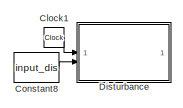
[diagram: root canvas - part 1/3, top right region]
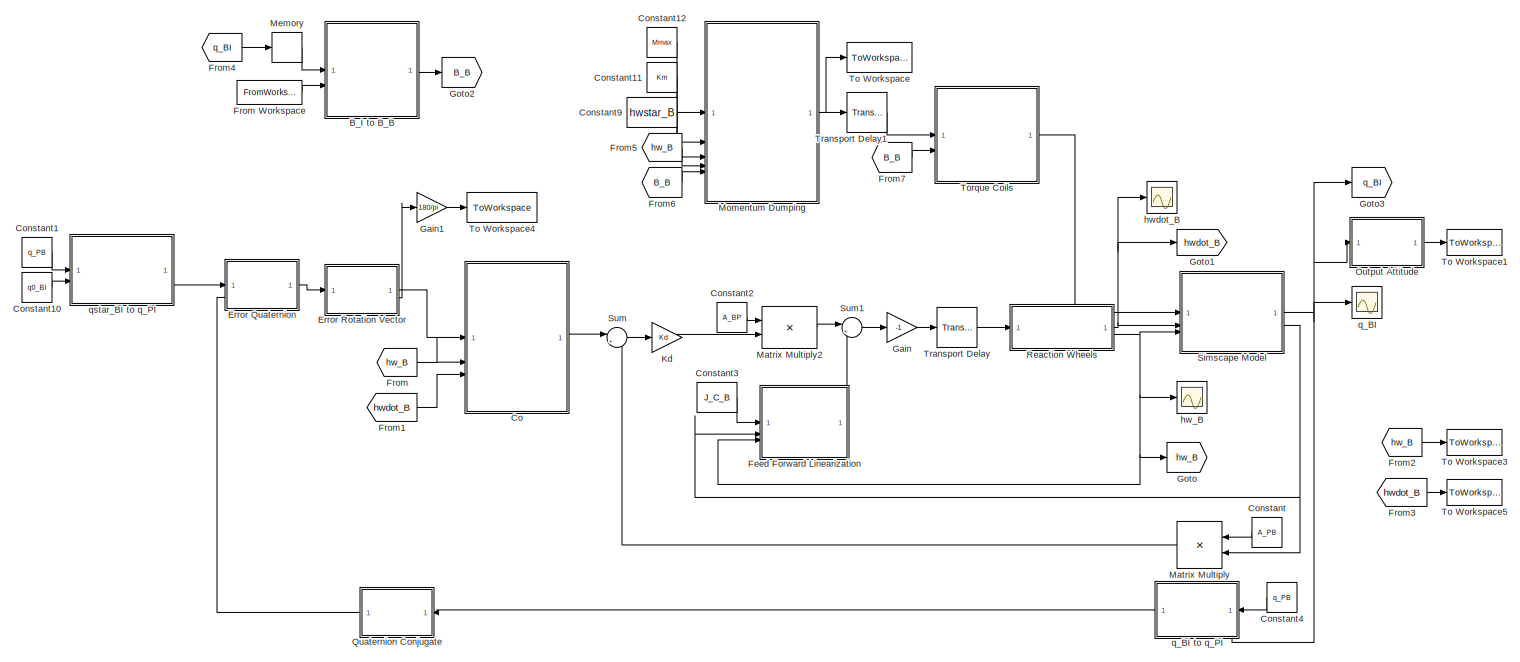
[diagram: root canvas - part 2/3, center side, full height]
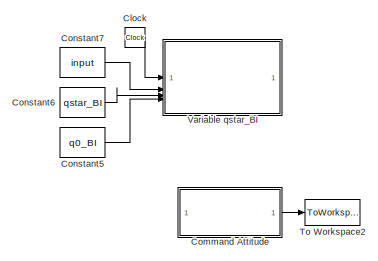
[diagram: root canvas - part 3/3, middle left region]
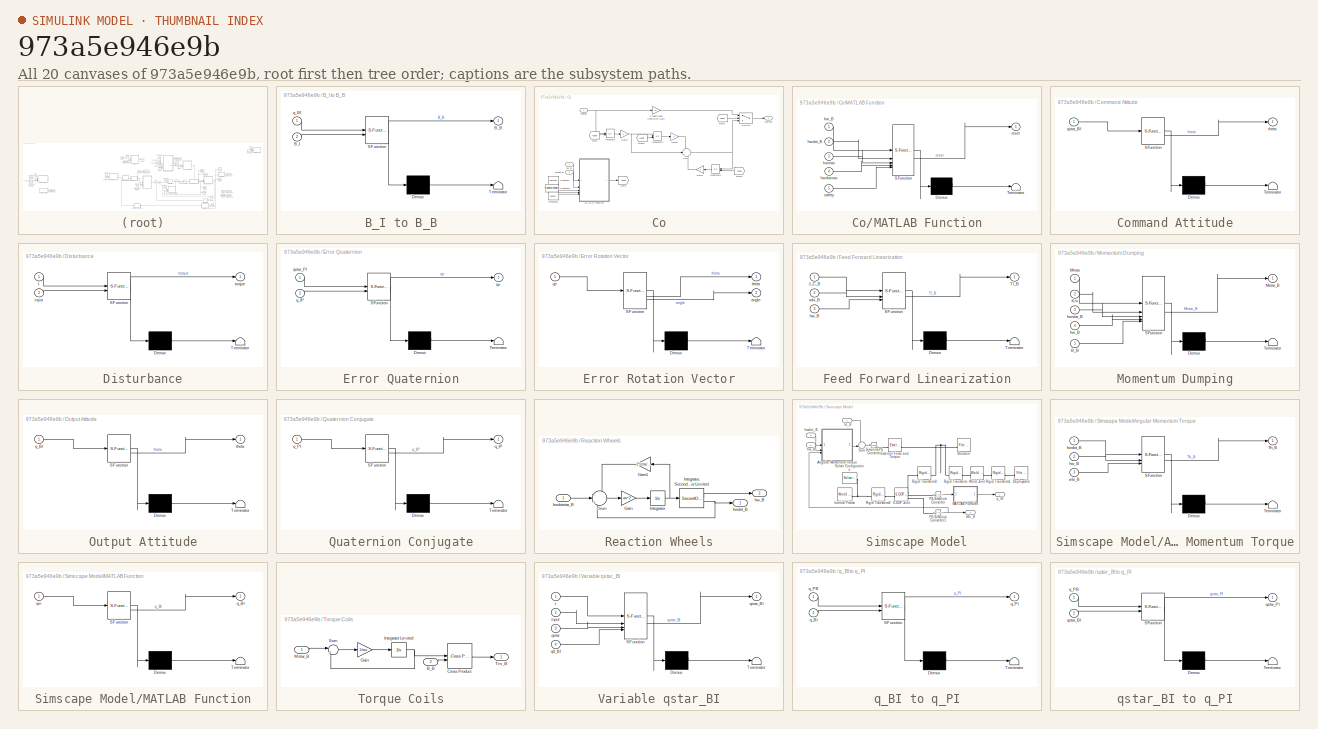
[diagram: thumbnail index - all 20 canvases of the model, root first then tree order]
MODEL slx_973a5e946e9b
KIND model
CONFIG AbsTol = auto
CONFIG EnableMultiTasking = off
CONFIG FixedStep = 0.
CONFIG MaxStep = auto
CONFIG MinStep = auto
CONFIG RelTol = 2.8421709430404007E-14
CONFIG SampleTimeConstraint = Unconstrained
CONFIG SolverName = VariableStepAuto
CONFIG StartTime = 0.0
CONFIG StopTime = 30
WORKSPACE source: mxarray member
WORKSPACE x0 = 0
BLOCK [SubSystem] B_I to B_B
  ErrorFcn = Stateflow.Translate.translate
  PermitHierarchicalResolution = ExplicitOnly
  SFBlockType = MATLAB Function
  TreatAsAtomicUnit = on
BLOCK [Demux] B_I to B_B/ Demux 
  Outputs = 1
BLOCK [S-Function] B_I to B_B/ SFunction 
  EnableBusSupport = on
  FunctionName = sf_sfun
  PortCounts = [2 2]
  SFcnIsStateOwnerBlock = off
  SFunctionDeploymentMode = off
  Tag = Stateflow S-Function 14
BLOCK [Terminator] B_I to B_B/ Terminator 
BLOCK [Outport] B_I to B_B/B_B
BLOCK [Inport] B_I to B_B/B_I
  Port = 2
BLOCK [Inport] B_I to B_B/q_BI
BLOCK [Clock] Clock
  Commented = on
BLOCK [Clock] Clock1
  Commented = on
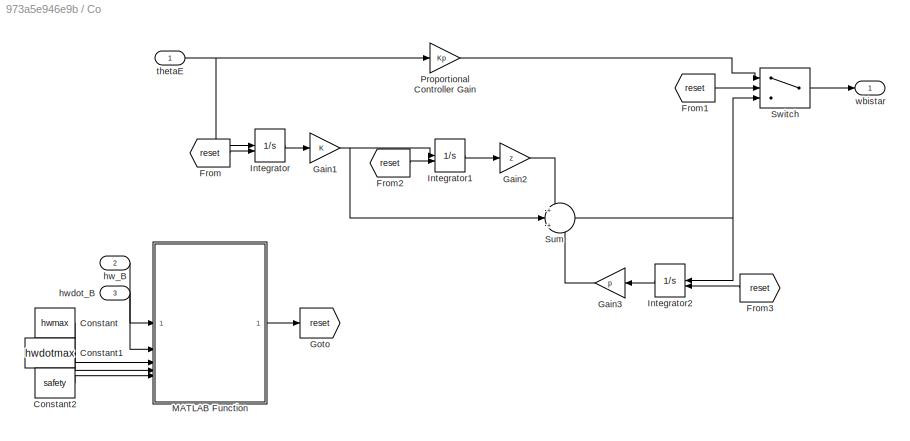
BLOCK [SubSystem] Co
BLOCK [Constant] Co/Constant
  Value = hwmax
BLOCK [Constant] Co/Constant1
  Value = hwdotmax
BLOCK [Constant] Co/Constant2
  Value = safety
BLOCK [From] Co/From
  GotoTag = reset
BLOCK [From] Co/From1
  GotoTag = reset
BLOCK [From] Co/From2
  GotoTag = reset
BLOCK [From] Co/From3
  GotoTag = reset
BLOCK [Gain] Co/Gain1
  Gain = K
BLOCK [Gain] Co/Gain2
  Gain = z
BLOCK [Gain] Co/Gain3
  Gain = p
BLOCK [Goto] Co/Goto
  GotoTag = reset
BLOCK [Integrator] Co/Integrator
  ExternalReset = level
BLOCK [Integrator] Co/Integrator1
  ExternalReset = level
BLOCK [Integrator] Co/Integrator2
  ExternalReset = level
BLOCK [SubSystem] Co/MATLAB Function
  ErrorFcn = Stateflow.Translate.translate
  PermitHierarchicalResolution = ExplicitOnly
  SFBlockType = MATLAB Function
  TreatAsAtomicUnit = on
BLOCK [Demux] Co/MATLAB Function/ Demux 
  Outputs = 1
BLOCK [S-Function] Co/MATLAB Function/ SFunction 
  EnableBusSupport = on
  FunctionName = sf_sfun
  PortCounts = [5 2]
  SFcnIsStateOwnerBlock = off
  SFunctionDeploymentMode = off
  Tag = Stateflow S-Function 13
BLOCK [Terminator] Co/MATLAB Function/ Terminator 
BLOCK [Inport] Co/MATLAB Function/hw_B
BLOCK [Inport] Co/MATLAB Function/hwdot_B
  Port = 2
BLOCK [Inport] Co/MATLAB Function/hwdotmax
  Port = 4
BLOCK [Inport] Co/MATLAB Function/hwmax
  Port = 3
BLOCK [Outport] Co/MATLAB Function/reset
BLOCK [Inport] Co/MATLAB Function/safety
  Port = 5
BLOCK [Gain] Co/Proportional Controller Gain
  Gain = Kp
BLOCK [Sum] Co/Sum
  Inputs = +|+|-
BLOCK [Switch] Co/Switch
  Criteria = u2 > Threshold
  InputSameDT = off
  SaturateOnIntegerOverflow = off
BLOCK [Inport] Co/hw_B
  Port = 2
BLOCK [Inport] Co/hwdot_B
  Port = 3
BLOCK [Inport] Co/thetaE
BLOCK [Outport] Co/wbistar
BLOCK [SubSystem] Command Attitude
  Commented = on
  ErrorFcn = Stateflow.Translate.translate
  PermitHierarchicalResolution = ExplicitOnly
  SFBlockType = MATLAB Function
  TreatAsAtomicUnit = on
BLOCK [Demux] Command Attitude/ Demux 
  Outputs = 1
BLOCK [S-Function] Command Attitude/ SFunction 
  EnableBusSupport = on
  FunctionName = sf_sfun
  PortCounts = [1 2]
  SFcnIsStateOwnerBlock = off
  SFunctionDeploymentMode = off
  Tag = Stateflow S-Function 10
BLOCK [Terminator] Command Attitude/ Terminator 
BLOCK [Inport] Command Attitude/qstar_BI
BLOCK [Outport] Command Attitude/theta
BLOCK [Constant] Constant
  Value = A_PB
BLOCK [Constant] Constant1
  OutDataTypeStr = Bus: qBus
  Value = q_PB
BLOCK [Constant] Constant10
  OutDataTypeStr = Bus: qBus
  Value = q0_BI
BLOCK [Constant] Constant11
  Value = Km
BLOCK [Constant] Constant12
  Value = Mmax
BLOCK [Constant] Constant2
  Value = A_BP
BLOCK [Constant] Constant3
  Value = J_C_B
BLOCK [Constant] Constant4
  OutDataTypeStr = Bus: qBus
  Value = q_PB
BLOCK [Constant] Constant5
  Commented = on
  OutDataTypeStr = Bus: qBus
  Value = q0_BI
BLOCK [Constant] Constant6
  Commented = on
  OutDataTypeStr = Bus: qBus
  Value = qstar_BI
BLOCK [Constant] Constant7
  Commented = on
  Value = input
BLOCK [Constant] Constant8
  Commented = on
  Value = input_dis
BLOCK [Constant] Constant9
  Value = hwstar_B
BLOCK [SubSystem] Disturbance
  Commented = on
  ErrorFcn = Stateflow.Translate.translate
  PermitHierarchicalResolution = ExplicitOnly
  SFBlockType = MATLAB Function
  TreatAsAtomicUnit = on
BLOCK [Demux] Disturbance/ Demux 
  Outputs = 1
BLOCK [S-Function] Disturbance/ SFunction 
  EnableBusSupport = on
  FunctionName = sf_sfun
  PortCounts = [2 2]
  SFcnIsStateOwnerBlock = off
  SFunctionDeploymentMode = off
  Tag = Stateflow S-Function 11
BLOCK [Terminator] Disturbance/ Terminator 
BLOCK [Inport] Disturbance/input
  Port = 2
BLOCK [Inport] Disturbance/t
BLOCK [Outport] Disturbance/torque
BLOCK [SubSystem] Error Quaternion
  ErrorFcn = Stateflow.Translate.translate
  PermitHierarchicalResolution = ExplicitOnly
  SFBlockType = MATLAB Function
  TreatAsAtomicUnit = on
BLOCK [Demux] Error Quaternion/ Demux 
  Outputs = 1
BLOCK [S-Function] Error Quaternion/ SFunction 
  EnableBusSupport = on
  FunctionName = sf_sfun
  PortCounts = [2 2]
  SFcnIsStateOwnerBlock = off
  SFunctionDeploymentMode = off
  Tag = Stateflow S-Function 5
BLOCK [Terminator] Error Quaternion/ Terminator 
BLOCK [Inport] Error Quaternion/q_IP
  Port = 2
BLOCK [Outport] Error Quaternion/qe
BLOCK [Inport] Error Quaternion/qstar_PI
BLOCK [SubSystem] Error Rotation Vector
  ErrorFcn = Stateflow.Translate.translate
  PermitHierarchicalResolution = ExplicitOnly
  SFBlockType = MATLAB Function
  TreatAsAtomicUnit = on
BLOCK [Demux] Error Rotation Vector/ Demux 
  Outputs = 1
BLOCK [S-Function] Error Rotation Vector/ SFunction 
  EnableBusSupport = on
  FunctionName = sf_sfun
  PortCounts = [1 3]
  SFcnIsStateOwnerBlock = off
  SFunctionDeploymentMode = off
  Tag = Stateflow S-Function 6
BLOCK [Terminator] Error Rotation Vector/ Terminator 
BLOCK [Outport] Error Rotation Vector/angle
  Port = 2
BLOCK [Inport] Error Rotation Vector/qe
BLOCK [Outport] Error Rotation Vector/theta
BLOCK [SubSystem] Feed Forward Linearization
  ErrorFcn = Stateflow.Translate.translate
  PermitHierarchicalResolution = ExplicitOnly
  SFBlockType = MATLAB Function
  TreatAsAtomicUnit = on
BLOCK [Demux] Feed Forward Linearization/ Demux 
  Outputs = 1
BLOCK [S-Function] Feed Forward Linearization/ SFunction 
  EnableBusSupport = on
  FunctionName = sf_sfun
  PortCounts = [3 2]
  SFcnIsStateOwnerBlock = off
  SFunctionDeploymentMode = off
  Tag = Stateflow S-Function 2
BLOCK [Terminator] Feed Forward Linearization/ Terminator 
BLOCK [Inport] Feed Forward Linearization/J_C_B
BLOCK [Outport] Feed Forward Linearization/Tl_B
BLOCK [Inport] Feed Forward Linearization/hw_B
  Port = 3
BLOCK [Inport] Feed Forward Linearization/wbi_B
  Port = 2
BLOCK [From] From
  GotoTag = hw_B
BLOCK [FromWorkspace] From Workspace
  VariableName = B_I
BLOCK [From] From1
  GotoTag = hwdot_B
BLOCK [From] From2
  GotoTag = hw_B
BLOCK [From] From3
  GotoTag = hwdot_B
BLOCK [From] From4
  GotoTag = q_BI
BLOCK [From] From5
  GotoTag = hw_B
BLOCK [From] From6
  GotoTag = B_B
BLOCK [From] From7
  GotoTag = B_B
BLOCK [Gain] Gain
  Gain = -1
BLOCK [Gain] Gain1
  Gain = 180/pi
BLOCK [Goto] Goto
  GotoTag = hw_B
BLOCK [Goto] Goto1
  GotoTag = hwdot_B
BLOCK [Goto] Goto2
  GotoTag = B_B
BLOCK [Goto] Goto3
  GotoTag = q_BI
BLOCK [Gain] Kd
  Gain = Kd
  Multiplication = Matrix(K*u) (u vector)
BLOCK [Product] Matrix Multiply
  Multiplication = Matrix(*)
BLOCK [Product] Matrix Multiply2
  Multiplication = Matrix(*)
BLOCK [Memory] Memory
  InitialCondition = q0_BI
BLOCK [SubSystem] Momentum Dumping
  ErrorFcn = Stateflow.Translate.translate
  PermitHierarchicalResolution = ExplicitOnly
  SFBlockType = MATLAB Function
  TreatAsAtomicUnit = on
BLOCK [Demux] Momentum Dumping/ Demux 
  Outputs = 1
BLOCK [S-Function] Momentum Dumping/ SFunction 
  EnableBusSupport = on
  FunctionName = sf_sfun
  PortCounts = [5 2]
  SFcnIsStateOwnerBlock = off
  SFunctionDeploymentMode = off
  Tag = Stateflow S-Function 15
BLOCK [Terminator] Momentum Dumping/ Terminator 
BLOCK [Inport] Momentum Dumping/B_B
  Port = 5
BLOCK [Inport] Momentum Dumping/Km
  Port = 2
BLOCK [Inport] Momentum Dumping/Mmax
BLOCK [Outport] Momentum Dumping/Mstar_B
BLOCK [Inport] Momentum Dumping/hw_B
  Port = 4
BLOCK [Inport] Momentum Dumping/hwstar_B
  Port = 3
BLOCK [SubSystem] Output Attitude
  ErrorFcn = Stateflow.Translate.translate
  PermitHierarchicalResolution = ExplicitOnly
  SFBlockType = MATLAB Function
  TreatAsAtomicUnit = on
BLOCK [Demux] Output Attitude/ Demux 
  Outputs = 1
BLOCK [S-Function] Output Attitude/ SFunction 
  EnableBusSupport = on
  FunctionName = sf_sfun
  PortCounts = [1 2]
  SFcnIsStateOwnerBlock = off
  SFunctionDeploymentMode = off
  Tag = Stateflow S-Function 9
BLOCK [Terminator] Output Attitude/ Terminator 
BLOCK [Inport] Output Attitude/q_BI
BLOCK [Outport] Output Attitude/theta
BLOCK [SubSystem] Quaternion Conjugate
  ErrorFcn = Stateflow.Translate.translate
  PermitHierarchicalResolution = ExplicitOnly
  SFBlockType = MATLAB Function
  TreatAsAtomicUnit = on
BLOCK [Demux] Quaternion Conjugate/ Demux 
  Outputs = 1
BLOCK [S-Function] Quaternion Conjugate/ SFunction 
  EnableBusSupport = on
  FunctionName = sf_sfun
  PortCounts = [1 2]
  SFcnIsStateOwnerBlock = off
  SFunctionDeploymentMode = off
  Tag = Stateflow S-Function 4
BLOCK [Terminator] Quaternion Conjugate/ Terminator 
BLOCK [Outport] Quaternion Conjugate/q_IP
BLOCK [Inport] Quaternion Conjugate/q_PI
BLOCK [SubSystem] Reaction Wheels
BLOCK [Gain] Reaction Wheels/Gain
  Gain = wn^2
BLOCK [Gain] Reaction Wheels/Gain1
  Gain = 2*zeta/wn
BLOCK [Integrator] Reaction Wheels/Integrator
BLOCK [SecondOrderIntegrator] Reaction Wheels/Integrator, Second-Order Limited
  ICX = hw0_B
  LimitDXDT = on
  LimitX = on
  LowerLimitDXDT = -hwdotmax
  LowerLimitX = -hwmax
  UpperLimitDXDT = hwdotmax
  UpperLimitX = hwmax
BLOCK [Sum] Reaction Wheels/Sum
  Inputs = -|+|-
BLOCK [Outport] Reaction Wheels/hw_B
  Port = 2
BLOCK [Outport] Reaction Wheels/hwdot_B
BLOCK [Inport] Reaction Wheels/hwdotstar_B
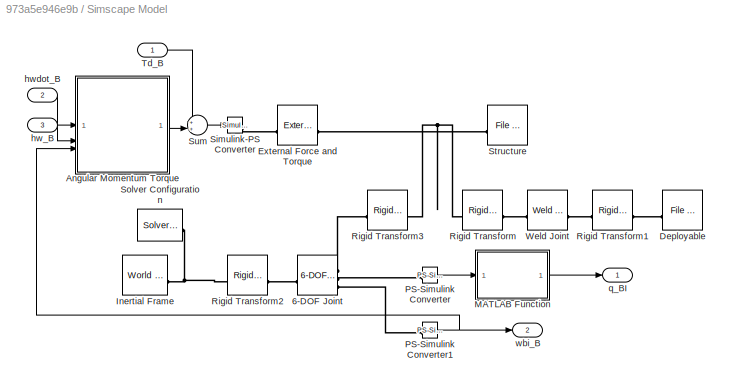
BLOCK [SubSystem] Simscape Model
  TreatAsAtomicUnit = on
BLOCK [Reference] Simscape Model/6-DOF Joint  REF=sm_lib/Joints/6-DOF Joint
  SourceBlock = sm_lib/Joints/6-DOF Joint
  SourceType = 6-DOF Joint
BLOCK [SubSystem] Simscape Model/Angular Momentum Torque
  ErrorFcn = Stateflow.Translate.translate
  PermitHierarchicalResolution = ExplicitOnly
  SFBlockType = MATLAB Function
  TreatAsAtomicUnit = on
BLOCK [Demux] Simscape Model/Angular Momentum Torque/ Demux 
  Outputs = 1
BLOCK [S-Function] Simscape Model/Angular Momentum Torque/ SFunction 
  EnableBusSupport = on
  FunctionName = sf_sfun
  PortCounts = [3 2]
  SFcnIsStateOwnerBlock = off
  SFunctionDeploymentMode = off
  Tag = Stateflow S-Function 12
BLOCK [Terminator] Simscape Model/Angular Momentum Torque/ Terminator 
BLOCK [Outport] Simscape Model/Angular Momentum Torque/Th_B
BLOCK [Inport] Simscape Model/Angular Momentum Torque/hw_B
  Port = 2
BLOCK [Inport] Simscape Model/Angular Momentum Torque/hwdot_B
BLOCK [Inport] Simscape Model/Angular Momentum Torque/wbi_B
  Port = 3
BLOCK [Reference] Simscape Model/Deployable  REF=sm_lib/Body Elements/File Solid
  SourceBlock = sm_lib/Body Elements/File Solid
  SourceType = File Solid
BLOCK [Reference] Simscape Model/External Force and Torque  REF=sm_lib/Forces and
Torques/External Force
and Torque
  SourceBlock = sm_lib/Forces and\nTorques/External Force\nand Torque
  SourceType = External Force\nand Torque
BLOCK [Reference] Simscape Model/Inertial Frame  REF=sm_lib/Frames and
Transforms/World Frame
  SourceBlock = sm_lib/Frames and\nTransforms/World Frame
  SourceType = World Frame
BLOCK [SubSystem] Simscape Model/MATLAB Function
  ErrorFcn = Stateflow.Translate.translate
  PermitHierarchicalResolution = ExplicitOnly
  SFBlockType = MATLAB Function
  TreatAsAtomicUnit = on
BLOCK [Demux] Simscape Model/MATLAB Function/ Demux 
  Outputs = 1
BLOCK [S-Function] Simscape Model/MATLAB Function/ SFunction 
  EnableBusSupport = on
  FunctionName = sf_sfun
  PortCounts = [1 2]
  SFcnIsStateOwnerBlock = off
  SFunctionDeploymentMode = off
  Tag = Stateflow S-Function 1
BLOCK [Terminator] Simscape Model/MATLAB Function/ Terminator 
BLOCK [Outport] Simscape Model/MATLAB Function/q_BI
BLOCK [Inport] Simscape Model/MATLAB Function/qin
BLOCK [Reference] Simscape Model/PS-Simulink Converter  REF=nesl_utility/PS-Simulink
Converter
  SourceBlock = nesl_utility/PS-Simulink\nConverter
  SourceType = PS-Simulink\nConverter
BLOCK [Reference] Simscape Model/PS-Simulink Converter1  REF=nesl_utility/PS-Simulink
Converter
  SourceBlock = nesl_utility/PS-Simulink\nConverter
  SourceType = PS-Simulink\nConverter
BLOCK [Reference] Simscape Model/Rigid Transform  REF=sm_lib/Frames and
Transforms/Rigid
Transform
  SourceBlock = sm_lib/Frames and\nTransforms/Rigid\nTransform
  SourceType = Rigid\nTransform
BLOCK [Reference] Simscape Model/Rigid Transform1  REF=sm_lib/Frames and
Transforms/Rigid
Transform
  SourceBlock = sm_lib/Frames and\nTransforms/Rigid\nTransform
  SourceType = Rigid\nTransform
BLOCK [Reference] Simscape Model/Rigid Transform2  REF=sm_lib/Frames and
Transforms/Rigid
Transform
  SourceBlock = sm_lib/Frames and\nTransforms/Rigid\nTransform
  SourceType = Rigid\nTransform
BLOCK [Reference] Simscape Model/Rigid Transform3  REF=sm_lib/Frames and
Transforms/Rigid
Transform
  SourceBlock = sm_lib/Frames and\nTransforms/Rigid\nTransform
  SourceType = Rigid\nTransform
BLOCK [Reference] Simscape Model/Simulink-PS Converter  REF=nesl_utility/Simulink-PS
Converter
  SourceBlock = nesl_utility/Simulink-PS\nConverter
  SourceType = Simulink-PS\nConverter
BLOCK [Reference] Simscape Model/Solver Configuration  REF=nesl_utility/Solver
Configuration
  SourceBlock = nesl_utility/Solver\nConfiguration
  SourceType = Solver\nConfiguration
BLOCK [Reference] Simscape Model/Structure  REF=sm_lib/Body Elements/File Solid
  SourceBlock = sm_lib/Body Elements/File Solid
  SourceType = File Solid
BLOCK [Sum] Simscape Model/Sum
  Inputs = ++|
BLOCK [Inport] Simscape Model/Td_B
BLOCK [Reference] Simscape Model/Weld Joint  REF=sm_lib/Joints/Weld Joint
  SourceBlock = sm_lib/Joints/Weld Joint
  SourceType = Weld Joint
BLOCK [Inport] Simscape Model/hw_B
  Port = 3
BLOCK [Inport] Simscape Model/hwdot_B
  Port = 2
BLOCK [Outport] Simscape Model/q_BI
  OutDataTypeStr = Bus: qBus
  VectorParamsAs1DForOutWhenUnconnected = off
BLOCK [Outport] Simscape Model/wbi_B
  Port = 2
  VectorParamsAs1DForOutWhenUnconnected = off
BLOCK [Sum] Sum
  Inputs = |+-
BLOCK [Sum] Sum1
  Inputs = |++
BLOCK [ToWorkspace] To Workspace
  FixptAsFi = on
  MaxDataPoints = inf
  SampleTime = -1
  SaveFormat = Timeseries
  VariableName = Mstar_B
BLOCK [ToWorkspace] To Workspace1
  FixptAsFi = on
  MaxDataPoints = inf
  SampleTime = -1
  SaveFormat = Timeseries
  VariableName = theta_out
BLOCK [ToWorkspace] To Workspace2
  Commented = on
  FixptAsFi = on
  MaxDataPoints = inf
  SampleTime = -1
  SaveFormat = Timeseries
  VariableName = theta_com
BLOCK [ToWorkspace] To Workspace3
  FixptAsFi = on
  MaxDataPoints = inf
  SampleTime = -1
  SaveFormat = Timeseries
  VariableName = hw_B
BLOCK [ToWorkspace] To Workspace4
  FixptAsFi = on
  MaxDataPoints = inf
  SampleTime = -1
  SaveFormat = Timeseries
  VariableName = error_angle
BLOCK [ToWorkspace] To Workspace5
  FixptAsFi = on
  MaxDataPoints = inf
  SampleTime = -1
  SaveFormat = Timeseries
  VariableName = hwdot_B
BLOCK [SubSystem] Torque Coils
BLOCK [Inport] Torque Coils/B_B
  Port = 2
BLOCK [Reference] Torque Coils/Cross Product  REF=matrix_library/Cross Product
  LibrarySourceBlock = simulink/Matrix\nOperations/Cross Product
  SourceBlock = matrix_library/Cross Product
  SourceType = CrossProduct
BLOCK [Gain] Torque Coils/Gain
  Gain = 1/tau
BLOCK [Integrator] Torque Coils/Integrator Limited
  LimitOutput = on
  LowerSaturationLimit = -Mmax
  UpperSaturationLimit = Mmax
  ZeroCross = off
BLOCK [Inport] Torque Coils/Mstar_B
BLOCK [Sum] Torque Coils/Sum
  Inputs = |+-
BLOCK [Outport] Torque Coils/Tm_B
BLOCK [TransportDelay] Transport Delay
  BufferSize = 2048
  DelayTime = dt_delay
BLOCK [TransportDelay] Transport Delay1
  BufferSize = 2048
  DelayTime = dt_delay
BLOCK [SubSystem] Variable qstar_BI
  Commented = on
  ErrorFcn = Stateflow.Translate.translate
  PermitHierarchicalResolution = ExplicitOnly
  SFBlockType = MATLAB Function
  TreatAsAtomicUnit = on
BLOCK [Demux] Variable qstar_BI/ Demux 
  Outputs = 1
BLOCK [S-Function] Variable qstar_BI/ SFunction 
  EnableBusSupport = on
  FunctionName = sf_sfun
  PortCounts = [4 2]
  SFcnIsStateOwnerBlock = off
  SFunctionDeploymentMode = off
  Tag = Stateflow S-Function 8
BLOCK [Terminator] Variable qstar_BI/ Terminator 
BLOCK [Inport] Variable qstar_BI/input
  Port = 2
BLOCK [Inport] Variable qstar_BI/q0_BI
  Port = 4
BLOCK [Inport] Variable qstar_BI/qstar
  Port = 3
BLOCK [Outport] Variable qstar_BI/qstar_BI
BLOCK [Inport] Variable qstar_BI/t
BLOCK [Scope] hw_B
  Floating = off
  NumInputPorts = 1
  ScopeSpecificationString = Simulink.scopes.TimeScopeBlockCfg('CurrentConfiguration', extmgr.ConfigurationSet(extmgr.Configuration('Core','General UI',true),extmgr.Configuration('Core','Source UI',true),extmgr.Configuration('Sources','WiredSimulink',true,'DataLoggingVariableName','ScopeData1'),extmgr.Configuration('Visuals','Time Domain',true,'SerializedDisplays',{struct('MinYLimReal','-0.00625','MaxYLimReal','0.00625','YLab...<+1449ch>
BLOCK [Scope] hwdot_B
  Floating = off
  NumInputPorts = 1
  ScopeSpecificationString = Simulink.scopes.TimeScopeBlockCfg('CurrentConfiguration', extmgr.ConfigurationSet(extmgr.Configuration('Core','General UI',true),extmgr.Configuration('Core','Source UI',true),extmgr.Configuration('Sources','WiredSimulink',true,'DataLoggingVariableName','ScopeData2'),extmgr.Configuration('Visuals','Time Domain',true,'SerializedDisplays',{struct('MinYLimReal','0.003988','MaxYLimReal','0.004009','YLa...<+1474ch>
BLOCK [Scope] q_BI
  Floating = off
  NumInputPorts = 1
  ScopeSpecificationString = Simulink.scopes.TimeScopeBlockCfg('CurrentConfiguration', extmgr.ConfigurationSet(extmgr.Configuration('Core','General UI',true),extmgr.Configuration('Core','Source UI',true),extmgr.Configuration('Sources','WiredSimulink',true,'DataLoggingVariableName','ScopeData1'),extmgr.Configuration('Visuals','Time Domain',true),extmgr.Configuration('Tools','Plot Navigation',true),extmgr.Configuration('Tools',...<+40ch>
BLOCK [SubSystem] q_BI to q_PI
  ErrorFcn = Stateflow.Translate.translate
  PermitHierarchicalResolution = ExplicitOnly
  SFBlockType = MATLAB Function
  TreatAsAtomicUnit = on
BLOCK [Demux] q_BI to q_PI/ Demux 
  Outputs = 1
BLOCK [S-Function] q_BI to q_PI/ SFunction 
  EnableBusSupport = on
  FunctionName = sf_sfun
  PortCounts = [2 2]
  SFcnIsStateOwnerBlock = off
  SFunctionDeploymentMode = off
  Tag = Stateflow S-Function 3
BLOCK [Terminator] q_BI to q_PI/ Terminator 
BLOCK [Inport] q_BI to q_PI/q_BI
  Port = 2
BLOCK [Inport] q_BI to q_PI/q_PB
BLOCK [Outport] q_BI to q_PI/q_PI
BLOCK [SubSystem] qstar_BI to q_PI
  ErrorFcn = Stateflow.Translate.translate
  PermitHierarchicalResolution = ExplicitOnly
  SFBlockType = MATLAB Function
  TreatAsAtomicUnit = on
BLOCK [Demux] qstar_BI to q_PI/ Demux 
  Outputs = 1
BLOCK [S-Function] qstar_BI to q_PI/ SFunction 
  EnableBusSupport = on
  FunctionName = sf_sfun
  PortCounts = [2 2]
  SFcnIsStateOwnerBlock = off
  SFunctionDeploymentMode = off
  Tag = Stateflow S-Function 7
BLOCK [Terminator] qstar_BI to q_PI/ Terminator 
BLOCK [Inport] qstar_BI to q_PI/q_PB
BLOCK [Inport] qstar_BI to q_PI/qstar_BI
  Port = 2
BLOCK [Outport] qstar_BI to q_PI/qstar_PI
LINE B_I to B_B:1 -> Goto2:1
LINE Clock1:1 -> Disturbance:1
LINE Clock:1 -> Variable qstar_BI:1
LINE Co/Constant1:1 -> Co/MATLAB Function:4
LINE Co/Constant2:1 -> Co/MATLAB Function:5
LINE Co/Constant:1 -> Co/MATLAB Function:3
LINE Co/From1:1 -> Co/Switch:2
LINE Co/From2:1 -> Co/Integrator1:2
LINE Co/From3:1 -> Co/Integrator2:2
LINE Co/From:1 -> Co/Integrator:2
NET Co/Gain1:1 -> Co/Integrator1:1, Co/Sum:2
LINE Co/Gain2:1 -> Co/Sum:1
LINE Co/Gain3:1 -> Co/Sum:3
LINE Co/Integrator1:1 -> Co/Gain2:1
LINE Co/Integrator2:1 -> Co/Gain3:1
LINE Co/Integrator:1 -> Co/Gain1:1
LINE Co/MATLAB Function:1 -> Co/Goto:1
LINE Co/Proportional Controller Gain:1 -> Co/Switch:1
NET Co/Sum:1 -> Co/Integrator2:1, Co/Switch:3
LINE Co/Switch:1 -> Co/wbistar:1
LINE Co/hw_B:1 -> Co/MATLAB Function:1
LINE Co/hwdot_B:1 -> Co/MATLAB Function:2
NET Co/thetaE:1 -> Co/Integrator:1, Co/Proportional Controller Gain:1
LINE Co:1 -> Sum:1
LINE Command Attitude:1 -> To Workspace2:1
LINE Constant10:1 -> qstar_BI to q_PI:2
LINE Constant11:1 -> Momentum Dumping:2
LINE Constant12:1 -> Momentum Dumping:1
LINE Constant1:1 -> qstar_BI to q_PI:1
LINE Constant2:1 -> Matrix Multiply2:1
LINE Constant3:1 -> Feed Forward Linearization:1
LINE Constant4:1 -> q_BI to q_PI:1
LINE Constant5:1 -> Variable qstar_BI:4
LINE Constant6:1 -> Variable qstar_BI:3
LINE Constant7:1 -> Variable qstar_BI:2
LINE Constant8:1 -> Disturbance:2
LINE Constant9:1 -> Momentum Dumping:3
LINE Constant:1 -> Matrix Multiply:1
LINE Error Quaternion:1 -> Error Rotation Vector:1
LINE Error Rotation Vector:1 -> Co:1
LINE Error Rotation Vector:2 -> Gain1:1
LINE Feed Forward Linearization:1 -> Sum1:2
LINE From Workspace:1 -> B_I to B_B:2
LINE From1:1 -> Co:3
LINE From2:1 -> To Workspace3:1
LINE From3:1 -> To Workspace5:1
LINE From4:1 -> Memory:1
LINE From5:1 -> Momentum Dumping:4
LINE From6:1 -> Momentum Dumping:5
LINE From7:1 -> Torque Coils:2
LINE From:1 -> Co:2
LINE Gain1:1 -> To Workspace4:1
LINE Gain:1 -> Transport Delay:1
LINE Kd:1 -> Matrix Multiply2:2
LINE Matrix Multiply2:1 -> Sum1:1
LINE Matrix Multiply:1 -> Sum:2
LINE Memory:1 -> B_I to B_B:1
NET Momentum Dumping:1 -> To Workspace:1, Transport Delay1:1
LINE Output Attitude:1 -> To Workspace1:1
LINE Quaternion Conjugate:1 -> Error Quaternion:2
LINE Reaction Wheels/Gain1:1 -> Reaction Wheels/Sum:1
LINE Reaction Wheels/Gain:1 -> Reaction Wheels/Integrator:1
LINE Reaction Wheels/Integrator, Second-Order Limited:1 -> Reaction Wheels/hw_B:1
NET Reaction Wheels/Integrator, Second-Order Limited:2 -> Reaction Wheels/Sum:3, Reaction Wheels/hwdot_B:1
NET Reaction Wheels/Integrator:1 -> Reaction Wheels/Gain1:1, Reaction Wheels/Integrator, Second-Order Limited:1
LINE Reaction Wheels/Sum:1 -> Reaction Wheels/Gain:1
LINE Reaction Wheels/hwdotstar_B:1 -> Reaction Wheels/Sum:2
NET Reaction Wheels:1 -> Goto1:1, Simscape Model:2, hwdot_B:1
NET Reaction Wheels:2 -> Feed Forward Linearization:3, Goto:1, Simscape Model:3, hw_B:1
LINE Simscape Model/Angular Momentum Torque:1 -> Simscape Model/Sum:2
LINE Simscape Model/MATLAB Function:1 -> Simscape Model/q_BI:1
NET Simscape Model/PS-Simulink Converter1:1 -> Simscape Model/Angular Momentum Torque:3, Simscape Model/wbi_B:1
LINE Simscape Model/PS-Simulink Converter:1 -> Simscape Model/MATLAB Function:1
LINE Simscape Model/Sum:1 -> Simscape Model/Simulink-PS Converter:1
LINE Simscape Model/Td_B:1 -> Simscape Model/Sum:1
LINE Simscape Model/hw_B:1 -> Simscape Model/Angular Momentum Torque:2
LINE Simscape Model/hwdot_B:1 -> Simscape Model/Angular Momentum Torque:1
NET Simscape Model:1 -> Goto3:1, Output Attitude:1, q_BI to q_PI:2, q_BI:1
NET Simscape Model:2 -> Feed Forward Linearization:2, Matrix Multiply:2
LINE Sum1:1 -> Gain:1
LINE Sum:1 -> Kd:1
LINE Torque Coils/B_B:1 -> Torque Coils/Cross Product:2
LINE Torque Coils/Cross Product:1 -> Torque Coils/Tm_B:1
LINE Torque Coils/Gain:1 -> Torque Coils/Integrator Limited:1
NET Torque Coils/Integrator Limited:1 -> Torque Coils/Cross Product:1, Torque Coils/Sum:2
LINE Torque Coils/Mstar_B:1 -> Torque Coils/Sum:1
LINE Torque Coils/Sum:1 -> Torque Coils/Gain:1
LINE Torque Coils:1 -> Simscape Model:1
LINE Transport Delay1:1 -> Torque Coils:1
LINE Transport Delay:1 -> Reaction Wheels:1
LINE q_BI to q_PI:1 -> Quaternion Conjugate:1
LINE qstar_BI to q_PI:1 -> Error Quaternion:1
PLINE Simscape Model/6-DOF Joint:LConn1 -- Simscape Model/Rigid Transform2:RConn1
PLINE Simscape Model/6-DOF Joint:RConn1 -- Simscape Model/Rigid Transform3:LConn1
PLINE Simscape Model/6-DOF Joint:RConn2 -- Simscape Model/PS-Simulink Converter:LConn1
PLINE Simscape Model/6-DOF Joint:RConn3 -- Simscape Model/PS-Simulink Converter1:LConn1
PLINE Simscape Model/Deployable:RConn1 -- Simscape Model/Rigid Transform1:RConn1
PLINE Simscape Model/External Force and Torque:LConn1 -- Simscape Model/Simulink-PS Converter:RConn1
PNET net1: Simscape Model/External Force and Torque:RConn1 -- Simscape Model/Rigid Transform3:RConn1 -- Simscape Model/Rigid Transform:LConn1 -- Simscape Model/Structure:RConn1
PNET net2: Simscape Model/Inertial Frame:RConn1 -- Simscape Model/Rigid Transform2:LConn1 -- Simscape Model/Solver Configuration:RConn1
PLINE Simscape Model/Rigid Transform1:LConn1 -- Simscape Model/Weld Joint:RConn1
PLINE Simscape Model/Rigid Transform:RConn1 -- Simscape Model/Weld Joint:LConn1
note: NET lines group one-source signal fan-out (src -> all destinations, sorted); 1:1 wires keep LINE; PNET lines group multi-terminal physical nets as a canonical sorted terminal list (undirected conserving connections); 2-terminal nets keep the pairwise PLINE form
CHART Co/MATLAB Function states=1 transitions=1
  STATE_LABEL 'eML_blk_kernel()'
  STATE_LABEL 'SCRIPT:\nfunction reset = fcn(hw_B,hwdot_B,hwmax,hwdotmax,safety)\n\nreset = 0;\n\nif max(abs(hw_B)) >= hwmax*safety || max(abs(hwdot_B)) >= hwdotmax*safety\n\n    reset = 1;\n\nend\n'
CHART Simscape Model/MATLAB Function states=1 transitions=1
  STATE_LABEL 'eML_blk_kernel()'
  STATE_LABEL 'SCRIPT:\nfunction q_BI = fcn(qin)\n\nq_BI.s = qin(1);\nq_BI.v = qin(2:4);\n'
CHART B_I to B_B states=1 transitions=1
  STATE_LABEL 'eML_blk_kernel()'
  STATE_LABEL 'SCRIPT:\nfunction B_B = fcn(q_BI, B_I)\n\nA_BI = q2A(q_BI);\n\nB_B = A_BI*B_I;\n'
CHART Momentum Dumping states=1 transitions=1
  STATE_LABEL 'eML_blk_kernel()'
  STATE_LABEL 'SCRIPT:\nfunction Mstar_B = fcn(Mmax, Km, hwstar_B, hw_B, B_B)\n\ndh_B = hw_B - hwstar_B;\n\nMstar_B = -Km/norm(B_B)^2*cross(B_B,dh_B);\n\nMbig = max(abs(Mstar_B));\n\nif Mbig > Mmax\n    Mstar_B = Mstar_B/Mbig*Mmax;\nend\n'
CHART Feed Forward Linearization states=1 transitions=1
  STATE_LABEL 'eML_blk_kernel()'
  STATE_LABEL 'SCRIPT:\nfunction Tl_B = fcn(J_C_B, wbi_B, hw_B)\n\nTl_B = cross(wbi_B, J_C_B*wbi_B + hw_B);\n'
CHART q_BI to q_PI states=1 transitions=1
  STATE_LABEL 'eML_blk_kernel()'
  STATE_LABEL 'SCRIPT:\nfunction q_PI = fcn(q_PB,q_BI)\n\nq_PI = qX(q_PB,q_BI);\n'
CHART Quaternion Conjugate states=1 transitions=1
  STATE_LABEL 'eML_blk_kernel()'
  STATE_LABEL 'SCRIPT:\nfunction q_IP = fcn(q_PI)\n\nq_IP = qT(q_PI);\n'
CHART Error Quaternion states=1 transitions=1
  STATE_LABEL 'eML_blk_kernel()'
  STATE_LABEL 'SCRIPT:\nfunction qe = fcn(qstar_PI, q_IP)\n\nqe = qX(qstar_PI,q_IP);\n'
CHART Error Rotation Vector states=1 transitions=1
  STATE_LABEL 'eML_blk_kernel()'
  STATE_LABEL 'SCRIPT:\nfunction [theta, angle] = fcn(qe)\n\nqe = qUnit(qe);\n\n[e, angle] = q2e(qe);\n\ntheta = e*angle;\n'
CHART qstar_BI to q_PI states=1 transitions=1
  STATE_LABEL 'eML_blk_kernel()'
  STATE_LABEL 'SCRIPT:\nfunction qstar_PI = fcn(q_PB,qstar_BI)\n\nqstar_PI = qX(q_PB,qstar_BI);\n'
CHART Variable qstar_BI states=1 transitions=1
  STATE_LABEL 'eML_blk_kernel()'
  STATE_LABEL 'SCRIPT:\nfunction qstar_BI = fcn(t,input,qstar,q0_BI)\n\ne = [1;1;1];\n\n% Command to hold current attitude (set qstar = q0_BI)\nif input == 0\n    qstar_BI = q0_BI;\n\n% Step command input (set qstar = qstar_BI)\nelseif input == 1\n    qstar_BI = qstar;\n\n% Ramp command input\nelseif input == 2\n    qstar_BI = e2q(e, (20*t + 15)*pi/180);\n\n% Sine wave command input\nelseif input == 3\n    qstar_BI = e2q(e, 5*pi/1...<+103ch>'
CHART Output Attitude states=1 transitions=1
  STATE_LABEL 'eML_blk_kernel()'
  STATE_LABEL 'SCRIPT:\nfunction theta = fcn(q_BI)\n\nq_BI = qUnit(q_BI);\n\n[e, angle] = q2e(q_BI);\n\ntheta = e*angle;\n'
CHART Command Attitude states=1 transitions=1
  STATE_LABEL 'eML_blk_kernel()'
  STATE_LABEL 'SCRIPT:\nfunction theta = fcn(qstar_BI)\n\nqstar_BI = qUnit(qstar_BI);\n\n[e, angle] = q2e(qstar_BI);\n\ntheta = e*angle;\n'
CHART Disturbance states=1 transitions=1
  STATE_LABEL 'eML_blk_kernel()'
  STATE_LABEL 'SCRIPT:\nfunction torque = fcn(t,input)\n\n% Constant disturbance torque\nif input == 1\n    torque = [0.001;0.001;0.001];\n\n% Sine wave disturbance torque\nelseif input == 2\n    torque = [1;1;1] * (5*pi/180 * sin(1.693*2*pi*t));\n\n% No disturbance torque\nelse\n    torque = [0;0;0];\nend\n\n'
CHART Simscape Model/Angular Momentum Torque states=1 transitions=1
  STATE_LABEL 'eML_blk_kernel()'
  STATE_LABEL 'SCRIPT:\nfunction Th_B = fcn(hwdot_B, hw_B, wbi_B)\n\nTh_B = -hwdot_B - cross(wbi_B,hw_B);\n'
CHART  states=0 transitions=0
CHART  states=0 transitions=0
CHART  states=0 transitions=0
CHART  states=0 transitions=0
CHART  states=0 transitions=0
CHART  states=0 transitions=0
CHART  states=0 transitions=0
CHART  states=0 transitions=0
CHART  states=0 transitions=0
CHART  states=0 transitions=0
CHART  states=0 transitions=0
CHART  states=0 transitions=0
CHART  states=0 transitions=0
CHART  states=0 transitions=0
CHART  states=0 transitions=0
